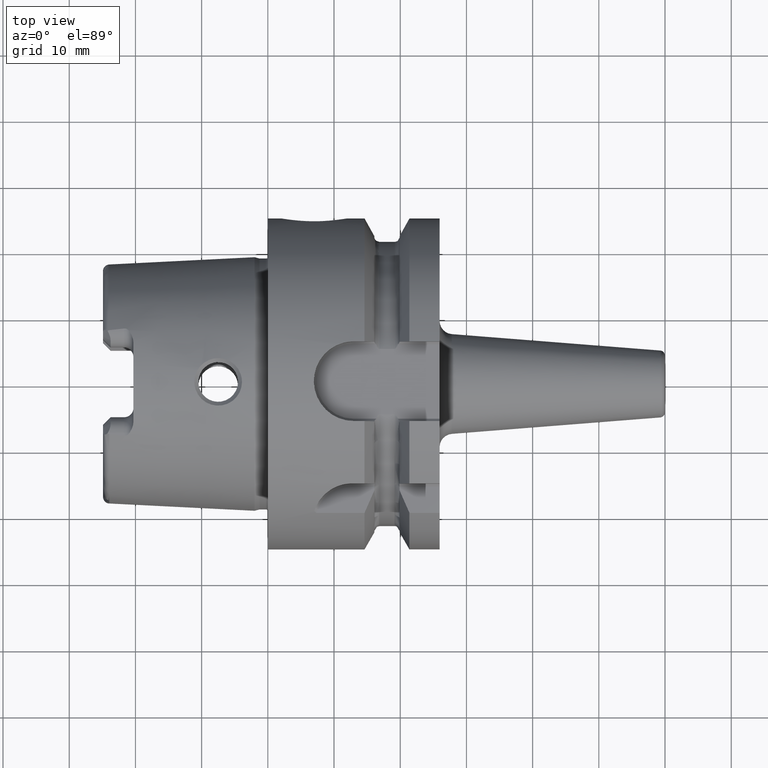
[diagram: clean part render]
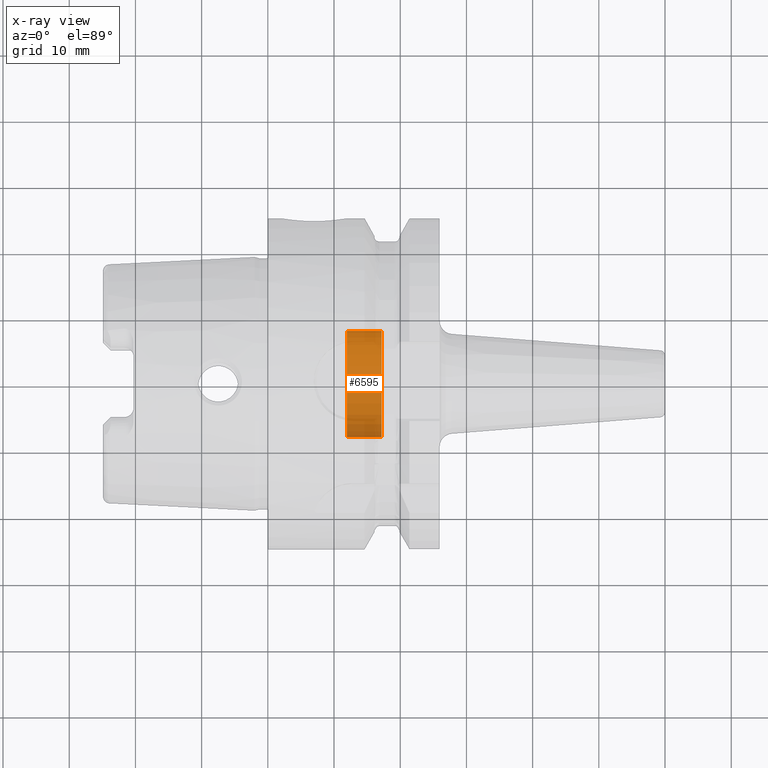
[diagram: x-ray — body ghosted, one internal face saturated and labeled with its STEP entity id]
A machine part, top view, then the same camera in x-ray: the body is ghosted and one INTERNAL B-rep face — a face not visible from any outside direction — is saturated and labeled: STEP entity #6595.
In plain terms, the highlighted cylindrical surface (partial cylindrical patch) has radius 8 mm, axis along (-1, 0, 0).
Its self-contained STEP definition (entity closure, byte-faithful):
#6544=CARTESIAN_POINT('',(1.72E1,0.E0,0.E0));
#6545=DIRECTION('',(-1.E0,0.E0,0.E0));
#6546=DIRECTION('',(0.E0,1.E0,0.E0));
#6547=AXIS2_PLACEMENT_3D('',#6544,#6545,#6546);
#6549=CARTESIAN_POINT('',(1.19625E1,0.E0,0.E0));
#6550=DIRECTION('',(1.E0,0.E0,0.E0));
#6551=DIRECTION('',(0.E0,-1.E0,0.E0));
#6552=AXIS2_PLACEMENT_3D('',#6549,#6550,#6551);
#6554=DIRECTION('',(1.E0,0.E0,0.E0));
#6555=VECTOR('',#6554,5.2375E0);
#6556=CARTESIAN_POINT('',(1.19625E1,8.E0,0.E0));
#6557=LINE('',#6556,#6555);
#6563=DIRECTION('',(1.E0,0.E0,0.E0));
#6564=VECTOR('',#6563,5.2375E0);
#6565=CARTESIAN_POINT('',(1.19625E1,-8.E0,0.E0));
#6566=LINE('',#6565,#6564);
#6572=CARTESIAN_POINT('',(1.19625E1,8.E0,0.E0));
#6573=CARTESIAN_POINT('',(1.72E1,8.E0,0.E0));
#6574=VERTEX_POINT('',#6572);
#6575=VERTEX_POINT('',#6573);
#6576=CARTESIAN_POINT('',(1.19625E1,-8.E0,0.E0));
#6577=CARTESIAN_POINT('',(1.72E1,-8.E0,0.E0));
#6578=VERTEX_POINT('',#6576);
#6579=VERTEX_POINT('',#6577);
#6580=CARTESIAN_POINT('',(2.329132554985E1,0.E0,0.E0));
#6581=DIRECTION('',(-1.E0,0.E0,0.E0));
#6582=DIRECTION('',(0.E0,1.E0,0.E0));
#6583=AXIS2_PLACEMENT_3D('',#6580,#6581,#6582);
#6584=CYLINDRICAL_SURFACE('',#6583,8.E0);
#6586=ORIENTED_EDGE('',*,*,#6585,.T.);
#6588=ORIENTED_EDGE('',*,*,#6587,.T.);
#6590=ORIENTED_EDGE('',*,*,#6589,.F.);
#6592=ORIENTED_EDGE('',*,*,#6591,.T.);
#6593=EDGE_LOOP('',(#6586,#6588,#6590,#6592));
#6594=FACE_OUTER_BOUND('',#6593,.F.);
#6595=ADVANCED_FACE('',(#6594),#6584,.F.);
#6548=CIRCLE('',#6547,8.E0);
#6553=CIRCLE('',#6552,8.E0);
#6585=EDGE_CURVE('',#6574,#6575,#6557,.T.);
#6587=EDGE_CURVE('',#6575,#6579,#6548,.T.);
#6589=EDGE_CURVE('',#6578,#6579,#6566,.T.);
#6591=EDGE_CURVE('',#6578,#6574,#6553,.T.);